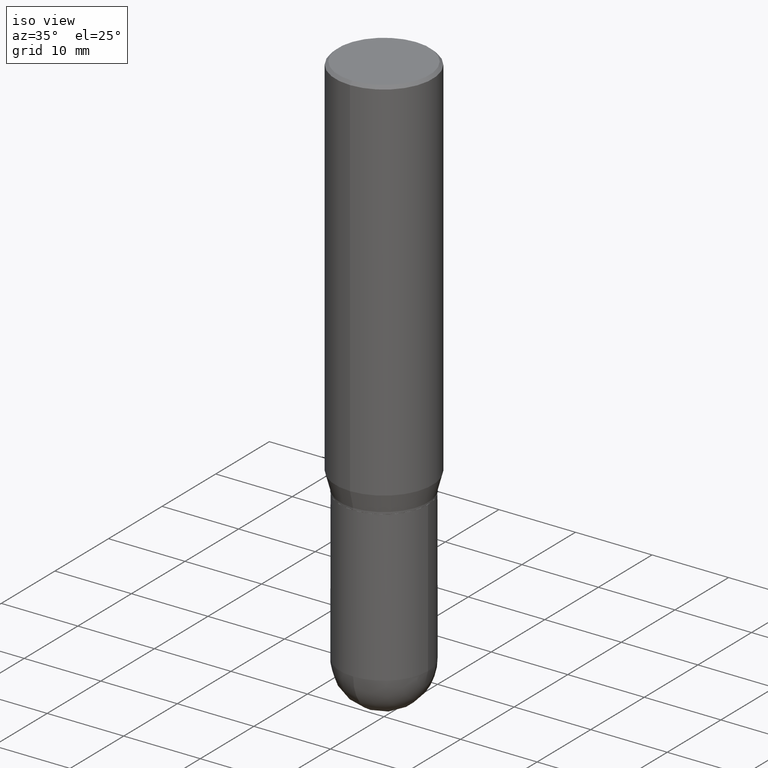
[diagram: clean part render]
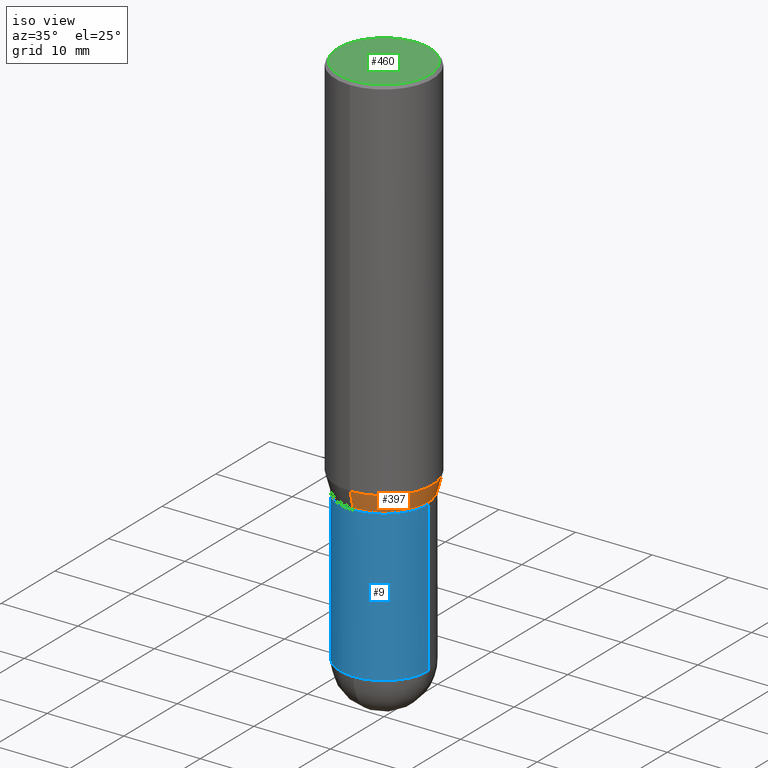
[diagram: same view with three faces highlighted in distinct colors, each labeled with its STEP entity id]
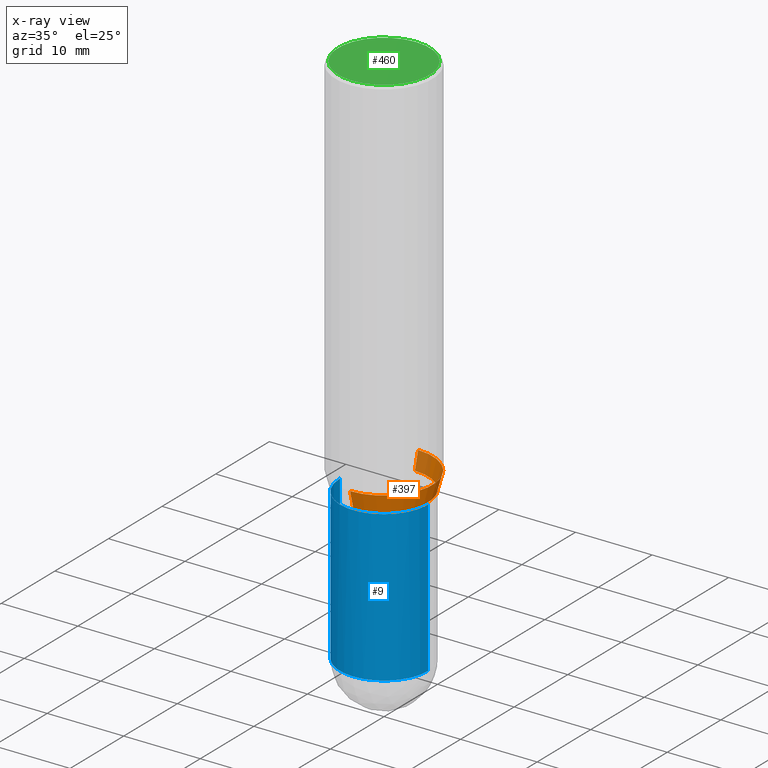
[diagram: x-ray of the same camera — body ghosted, the three highlighted faces saturated]
A machine part, iso view with three faces highlighted in distinct colors.
The next image is the same camera in x-ray (body ghosted, the three faces saturated) — at least one of them is partly hidden behind the body in this view.
Their STEP definitions:

[orange] entity #397 — the highlighted conical surface has half-angle 15 deg.
#12 = CARTESIAN_POINT ( 'NONE',  ( 1.776356839400296613E-15, 0.2499999999999933664, -1.902483408562511302 ) ) ;
#24 = ORIENTED_EDGE ( 'NONE', *, *, #351, .T. ) ;
#44 = AXIS2_PLACEMENT_3D ( 'NONE', #234, #402, #305 ) ;
#48 = CARTESIAN_POINT ( 'NONE',  ( -1.581990194629774423E-15, -0.2265500000000069125, -1.989999999999999547 ) ) ;
#67 = VERTEX_POINT ( 'NONE', #268 ) ;
#79 = VERTEX_POINT ( 'NONE', #438 ) ;
#86 = VECTOR ( 'NONE', #249, 39.37007874015748854 ) ;
#94 = CARTESIAN_POINT ( 'NONE',  ( 1.609734567864555299E-15, 0.2265499999999930347, -1.990000000000001101 ) ) ;
#123 = FACE_OUTER_BOUND ( 'NONE', #416, .T. ) ;
#194 = DIRECTION ( 'NONE',  ( -2.445553707813064024E-29, 3.491359754879653000E-15, 1.000000000000000000 ) ) ;
#198 = CARTESIAN_POINT ( 'NONE',  ( 4.866651878547998394E-29, -6.947805912210510858E-15, -1.990000000000000435 ) ) ;
#204 = LINE ( 'NONE', #48, #247 ) ;
#224 = CIRCLE ( 'NONE', #293, 0.2500000000000000000 ) ;
#225 = VERTEX_POINT ( 'NONE', #296 ) ;
#228 = DIRECTION ( 'NONE',  ( -6.982962677686265922E-15, -1.000000000000000000, 3.278217592397115862E-15 ) ) ;
#234 = CARTESIAN_POINT ( 'NONE',  ( 4.866651878547998394E-29, -6.947805912210510858E-15, -1.990000000000000435 ) ) ;
#242 = DIRECTION ( 'NONE',  ( -6.982962677686265922E-15, -1.000000000000000000, 3.617543138818270030E-15 ) ) ;
#247 = VECTOR ( 'NONE', #443, 39.37007874015748854 ) ;
#249 = DIRECTION ( 'NONE',  ( 1.839019923739601893E-15, 0.2588190451025252359, 0.9659258262890670910 ) ) ;
#261 = AXIS2_PLACEMENT_3D ( 'NONE', #198, #409, #242 ) ;
#268 = CARTESIAN_POINT ( 'NONE',  ( -1.745740669421519543E-15, -0.2500000000000066058, -1.902483408562509748 ) ) ;
#276 = ORIENTED_EDGE ( 'NONE', *, *, #292, .F. ) ;
#290 = ORIENTED_EDGE ( 'NONE', *, *, #454, .T. ) ;
#292 = EDGE_CURVE ( 'NONE', #67, #499, #224, .T. ) ;
#293 = AXIS2_PLACEMENT_3D ( 'NONE', #509, #194, #228 ) ;
#296 = CARTESIAN_POINT ( 'NONE',  ( -1.581990194629774423E-15, -0.2265500000000069125, -1.989999999999999547 ) ) ;
#302 = CIRCLE ( 'NONE', #261, 0.2265499999999999736 ) ;
#305 = DIRECTION ( 'NONE',  ( -6.982962677686265922E-15, -1.000000000000000000, 3.617543138818270030E-15 ) ) ;
#351 = EDGE_CURVE ( 'NONE', #79, #499, #450, .T. ) ;
#397 = ADVANCED_FACE ( 'NONE', ( #123 ), #472, .T. ) ;
#402 = DIRECTION ( 'NONE',  ( -2.445553707813064024E-29, 3.491359754879653000E-15, 1.000000000000000000 ) ) ;
#409 = DIRECTION ( 'NONE',  ( -2.445553707813064024E-29, 3.491359754879653000E-15, 1.000000000000000000 ) ) ;
#416 = EDGE_LOOP ( 'NONE', ( #290, #24, #276, #428 ) ) ;
#421 = EDGE_CURVE ( 'NONE', #225, #67, #204, .T. ) ;
#428 = ORIENTED_EDGE ( 'NONE', *, *, #421, .F. ) ;
#438 = CARTESIAN_POINT ( 'NONE',  ( 1.693045703632425956E-15, 0.2265499999999930347, -1.990000000000001101 ) ) ;
#443 = DIRECTION ( 'NONE',  ( -1.807323732225331717E-15, -0.2588190451025184080, 0.9659258262890689783 ) ) ;
#450 = LINE ( 'NONE', #94, #86 ) ;
#454 = EDGE_CURVE ( 'NONE', #225, #79, #302, .T. ) ;
#472 = CONICAL_SURFACE ( 'NONE', #44, 0.2265499999999999736, 0.2617993877991505181 ) ;
#499 = VERTEX_POINT ( 'NONE', #12 ) ;
#509 = CARTESIAN_POINT ( 'NONE',  ( 4.652625353862883920E-29, -6.642254006981412972E-15, -1.902483408562510414 ) ) ;

[blue] entity #9 — the highlighted cylindrical surface (partial cylindrical patch) has radius 5.7544 mm, axis along (-0, 0, 1).
#1 = VERTEX_POINT ( 'NONE', #313 ) ;
#9 = ADVANCED_FACE ( 'NONE', ( #238 ), #404, .T. ) ;
#23 = EDGE_CURVE ( 'NONE', #462, #28, #87, .T. ) ;
#28 = VERTEX_POINT ( 'NONE', #240 ) ;
#30 = CARTESIAN_POINT ( 'NONE',  ( 6.782385460514168389E-29, -9.683448919214523504E-15, -2.773450000000000415 ) ) ;
#35 = CARTESIAN_POINT ( 'NONE',  ( 0.2265500000000000291, -9.915195993080232639E-15, -2.773450000000000415 ) ) ;
#46 = CARTESIAN_POINT ( 'NONE',  ( 0.000000000000000000, 0.000000000000000000, 0.000000000000000000 ) ) ;
#64 = VECTOR ( 'NONE', #149, 39.37007874015748143 ) ;
#66 = CARTESIAN_POINT ( 'NONE',  ( -0.2265500000000000291, -6.723471230585900551E-15, -2.773450000000000415 ) ) ;
#82 = DIRECTION ( 'NONE',  ( -2.445468806185136597E-29, 3.491481338843145583E-15, 1.000000000000000000 ) ) ;
#84 = CIRCLE ( 'NONE', #154, 0.2265500000000000291 ) ;
#87 = LINE ( 'NONE', #277, #126 ) ;
#99 = DIRECTION ( 'NONE',  ( 1.000000000000000000, -6.982962677686266711E-15, 0.000000000000000000 ) ) ;
#115 = EDGE_CURVE ( 'NONE', #241, #166, #375, .T. ) ;
#117 = EDGE_LOOP ( 'NONE', ( #352, #145, #335, #294, #487 ) ) ;
#126 = VECTOR ( 'NONE', #445, 39.37007874015748143 ) ;
#129 = CARTESIAN_POINT ( 'NONE',  ( 4.890937612370273754E-29, -6.982962677686291954E-15, -2.000000000000000444 ) ) ;
#145 = ORIENTED_EDGE ( 'NONE', *, *, #115, .T. ) ;
#149 = DIRECTION ( 'NONE',  ( -2.445468806185136877E-29, 3.491481338843145188E-15, 1.000000000000000000 ) ) ;
#154 = AXIS2_PLACEMENT_3D ( 'NONE', #30, #504, #99 ) ;
#166 = VERTEX_POINT ( 'NONE', #334 ) ;
#174 = DIRECTION ( 'NONE',  ( -2.445468806185136597E-29, 3.491481338843145583E-15, 1.000000000000000000 ) ) ;
#193 = EDGE_CURVE ( 'NONE', #166, #462, #84, .T. ) ;
#207 = DIRECTION ( 'NONE',  ( -2.445468806185136597E-29, 3.491481338843145583E-15, 1.000000000000000000 ) ) ;
#211 = DIRECTION ( 'NONE',  ( 1.000000000000000000, -6.982962677686266711E-15, 0.000000000000000000 ) ) ;
#214 = EDGE_CURVE ( 'NONE', #241, #1, #465, .T. ) ;
#238 = FACE_OUTER_BOUND ( 'NONE', #117, .T. ) ;
#240 = CARTESIAN_POINT ( 'NONE',  ( 0.2265500000000000291, -8.564952872316116075E-15, -2.000000000000000444 ) ) ;
#241 = VERTEX_POINT ( 'NONE', #66 ) ;
#254 = CARTESIAN_POINT ( 'NONE',  ( -0.2265500000000000291, 1.609734567864507178E-15, -1.114384744697249003E-29 ) ) ;
#277 = CARTESIAN_POINT ( 'NONE',  ( 0.2265500000000000291, -1.581990194629823924E-15, 1.104697848556569421E-29 ) ) ;
#294 = ORIENTED_EDGE ( 'NONE', *, *, #23, .T. ) ;
#310 = AXIS2_PLACEMENT_3D ( 'NONE', #372, #82, #327 ) ;
#313 = CARTESIAN_POINT ( 'NONE',  ( -0.2265500000000000291, -6.723471230585900551E-15, -2.000000000000000444 ) ) ;
#327 = DIRECTION ( 'NONE',  ( 1.000000000000000000, -6.982962677686266711E-15, 0.000000000000000000 ) ) ;
#334 = CARTESIAN_POINT ( 'NONE',  ( -1.609734567864438547E-15, -0.2265500000000096603, -2.773449999999999971 ) ) ;
#335 = ORIENTED_EDGE ( 'NONE', *, *, #193, .T. ) ;
#339 = AXIS2_PLACEMENT_3D ( 'NONE', #46, #207, #360 ) ;
#348 = AXIS2_PLACEMENT_3D ( 'NONE', #129, #174, #211 ) ;
#352 = ORIENTED_EDGE ( 'NONE', *, *, #214, .F. ) ;
#360 = DIRECTION ( 'NONE',  ( 1.000000000000000000, -6.982962677686266711E-15, 4.876176775795935793E-29 ) ) ;
#372 = CARTESIAN_POINT ( 'NONE',  ( 6.782385460514168389E-29, -9.683448919214523504E-15, -2.773450000000000415 ) ) ;
#375 = CIRCLE ( 'NONE', #310, 0.2265500000000000291 ) ;
#383 = CIRCLE ( 'NONE', #348, 0.2265500000000000291 ) ;
#404 = CYLINDRICAL_SURFACE ( 'NONE', #339, 0.2265500000000000291 ) ;
#445 = DIRECTION ( 'NONE',  ( -2.445468806185136877E-29, 3.491481338843145188E-15, 1.000000000000000000 ) ) ;
#462 = VERTEX_POINT ( 'NONE', #35 ) ;
#465 = LINE ( 'NONE', #254, #64 ) ;
#487 = ORIENTED_EDGE ( 'NONE', *, *, #495, .F. ) ;
#495 = EDGE_CURVE ( 'NONE', #1, #28, #383, .T. ) ;
#504 = DIRECTION ( 'NONE',  ( -2.445468806185136597E-29, 3.491481338843145583E-15, 1.000000000000000000 ) ) ;

[green] entity #460 — the highlighted planar face has unit normal (0, -0, -1).
#13 = CARTESIAN_POINT ( 'NONE',  ( 1.693368449338919598E-15, 0.2349999999999999867, -9.234465523360647217E-16 ) ) ;
#31 = EDGE_CURVE ( 'NONE', #343, #89, #267, .T. ) ;
#50 = FACE_OUTER_BOUND ( 'NONE', #170, .T. ) ;
#51 = CARTESIAN_POINT ( 'NONE',  ( -1.663670764459595899E-15, -0.2349999999999999867, 7.174925324573721132E-16 ) ) ;
#89 = VERTEX_POINT ( 'NONE', #51 ) ;
#113 = AXIS2_PLACEMENT_3D ( 'NONE', #150, #379, #337 ) ;
#150 = CARTESIAN_POINT ( 'NONE',  ( 2.518358084766711296E-45, -3.595297881800758106E-31, -1.029770099393463289E-16 ) ) ;
#170 = EDGE_LOOP ( 'NONE', ( #298, #235 ) ) ;
#172 = AXIS2_PLACEMENT_3D ( 'NONE', #202, #390, #356 ) ;
#173 = DIRECTION ( 'NONE',  ( -6.982962677686266711E-15, -1.000000000000000000, 3.491359754879653394E-15 ) ) ;
#202 = CARTESIAN_POINT ( 'NONE',  ( 1.640996229256272519E-15, 0.2349999999999999867, -8.719580473663915449E-16 ) ) ;
#233 = AXIS2_PLACEMENT_3D ( 'NONE', #288, #362, #173 ) ;
#235 = ORIENTED_EDGE ( 'NONE', *, *, #346, .T. ) ;
#267 = CIRCLE ( 'NONE', #113, 0.2349999999999999867 ) ;
#288 = CARTESIAN_POINT ( 'NONE',  ( 2.518358084766711296E-45, -3.595297881800758106E-31, -1.029770099393463289E-16 ) ) ;
#298 = ORIENTED_EDGE ( 'NONE', *, *, #31, .T. ) ;
#337 = DIRECTION ( 'NONE',  ( -6.982962677686266711E-15, -1.000000000000000000, 3.491359754879653394E-15 ) ) ;
#343 = VERTEX_POINT ( 'NONE', #13 ) ;
#346 = EDGE_CURVE ( 'NONE', #89, #343, #507, .T. ) ;
#356 = DIRECTION ( 'NONE',  ( 6.982962677686265922E-15, 1.000000000000000000, -3.491359754879653000E-15 ) ) ;
#362 = DIRECTION ( 'NONE',  ( -2.445553707813064024E-29, 3.491359754879653000E-15, 1.000000000000000000 ) ) ;
#368 = PLANE ( 'NONE',  #172 ) ;
#379 = DIRECTION ( 'NONE',  ( -2.445553707813064024E-29, 3.491359754879653000E-15, 1.000000000000000000 ) ) ;
#390 = DIRECTION ( 'NONE',  ( 2.445553707813063743E-29, -3.491359754879653000E-15, -1.000000000000000000 ) ) ;
#460 = ADVANCED_FACE ( 'NONE', ( #50 ), #368, .F. ) ;
#507 = CIRCLE ( 'NONE', #233, 0.2349999999999999867 ) ;